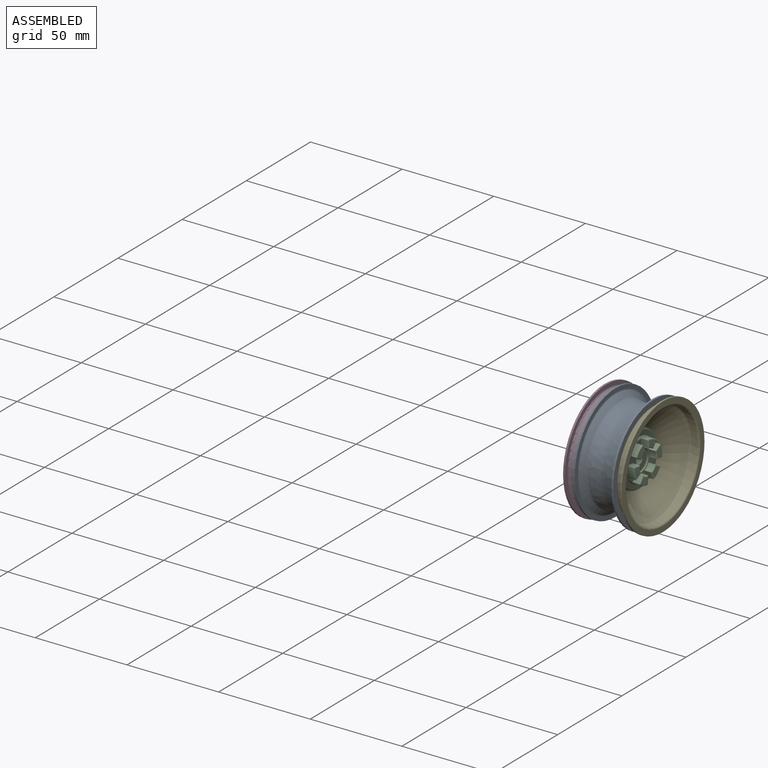
[diagram: assembled view]
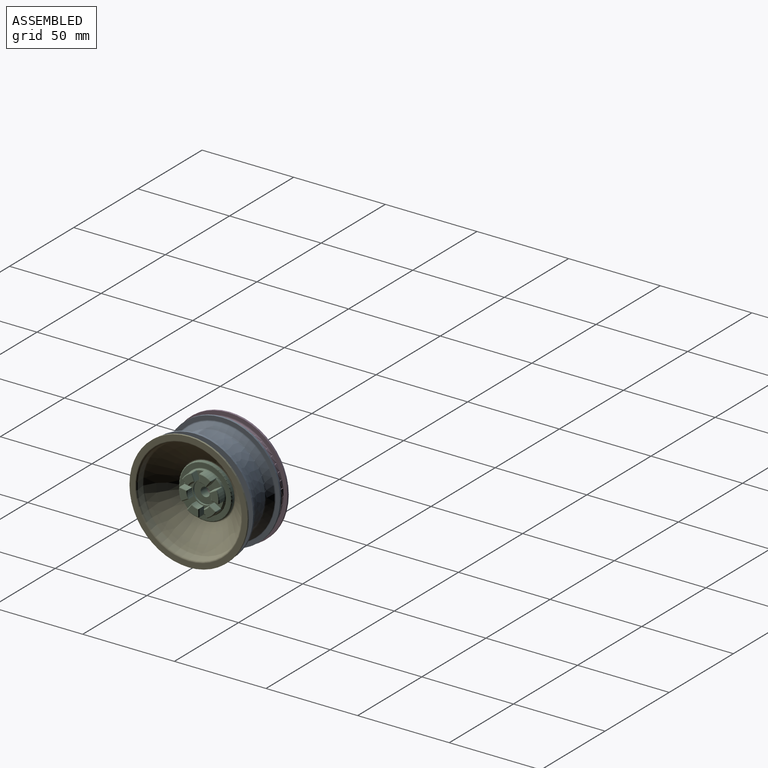
[diagram: assembled view, second angle]
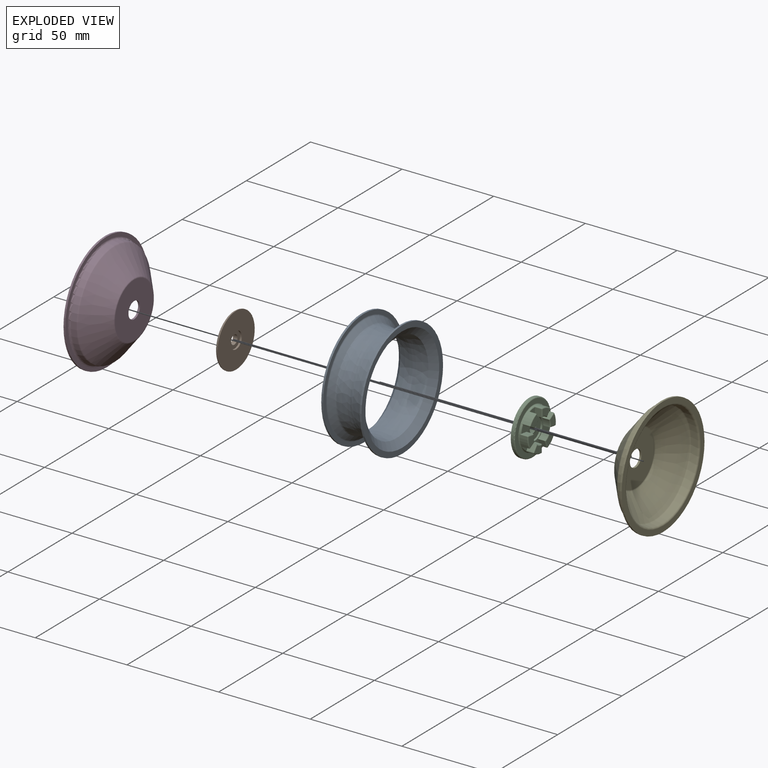
[diagram: exploded view]
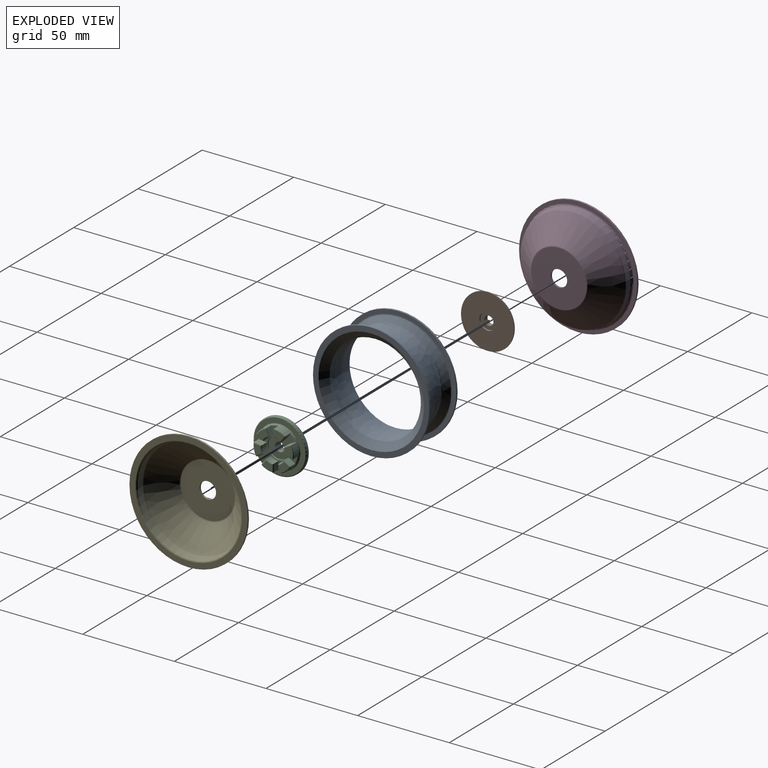
[diagram: exploded view, second angle]
ASSEMBLY  parts=5 mates=4
PART A: 26 faces, bbox 22x65.3x65.3 mm
  f0: cylinder r=24.93mm len=49.85mm, axis (-1,0,0), area 71.9mm2, adj f16,f19
  f1: cone r=25.82mm half-angle=8deg, axis (-1,0,0), area 852.6mm2, adj f16,f20
  f2: cone r=29.11mm half-angle=50.6deg, axis (-1,0,0), area 605mm2, adj f20,f21
  f3: plane 63.5x63.5mm, normal (1,0,0), area 439.2mm2, adj f4,f21
  f4: cylinder r=31.75mm len=63.5mm, axis (-1,0,0), area 199.5mm2, adj f3,f5
  f5: plane 63.5x63.5mm, normal (-1,0,0), area 505.1mm2, adj f4,f22
  f6: cone r=24.89mm half-angle=50.6deg, axis (-1,0,0), area 716.8mm2, adj f22,f23
  f7: cone r=23.92mm half-angle=8deg, axis (-1,0,0), area 890.7mm2, adj f17,f23
  f8: cylinder r=23.92mm len=47.85mm, axis (-1,0,0), area 90.1mm2, adj f17,f18
  f9: cone r=23.92mm half-angle=8deg, axis (1,0,0), area 951.5mm2, adj f10,f18
  f10: cone r=24.89mm half-angle=50.6deg, axis (1,0,0), area 842.5mm2, adj f9,f11
  f11: plane 63.5x63.5mm, normal (1,0,0), area 570.2mm2, adj f10,f12
  f12: cylinder r=31.75mm len=63.5mm, axis (-1,0,0), area 199.5mm2, adj f11,f13
  f13: plane 63.5x63.5mm, normal (-1,0,0), area 439.2mm2, adj f12,f24
  f14: cone r=29.11mm half-angle=50.6deg, axis (1,0,0), area 605mm2, adj f24,f25
  f15: cone r=25.82mm half-angle=8deg, axis (1,0,0), area 852.6mm2, adj f19,f25
  f16: torus R=34.92mm, axis (-1,0,0), area 219.3mm2, adj f0,f1
  f17: torus R=33.92mm, axis (1,0,0), area 210.5mm2, adj f7,f8
  f18: torus R=33.92mm, axis (1,0,0), area 210.5mm2, adj f8,f9
  f19: torus R=34.92mm, axis (-1,0,0), area 219.3mm2, adj f0,f15
  f20: torus R=26.76mm, axis (-1,0,0), area 121mm2, adj f1,f2
  f21: torus R=29.47mm, axis (1,0,0), area 125.9mm2, adj f2,f3
  f22: torus R=29.11mm, axis (-1,0,0), area 124.3mm2, adj f5,f6
  f23: torus R=25.82mm, axis (1,0,0), area 116.6mm2, adj f6,f7
  f24: torus R=29.47mm, axis (1,0,0), area 125.9mm2, adj f13,f14
  f25: torus R=26.76mm, axis (-1,0,0), area 121mm2, adj f14,f15
PART B: 9 faces, bbox 4x31.4x31.4 mm
  f0: plane 10.73x10.73mm, normal (-1,0,0), area 70.7mm2, adj f1,f8
  f1: cylinder r=2.5mm len=5mm, axis (-1,0,0), area 39.3mm2, adj f0,f2
  f2: plane 9x9mm, normal (1,0,0), area 44mm2, adj f1,f3
  f3: cylinder r=4.5mm len=9mm, axis (-1,0,0), area 28.3mm2, adj f2,f4
  f4: plane 29x29mm, normal (1,0,0), area 596.9mm2, adj f3,f5
  f5: cylinder r=14.5mm len=29mm, axis (-1,0,0), area 21.9mm2, adj f4,f7
  f6: cone r=14.5mm half-angle=74.5deg, axis (1,0,0), area 514.6mm2, adj f7,f8
  f7: torus R=13.5mm, axis (1,0,0), area 116.3mm2, adj f5,f6
  f8: torus R=5.36mm, axis (1,0,0), area 9.4mm2, adj f0,f6
PART C: 95 faces, bbox 9.5x31.4x31.4 mm
  f0: cylinder r=11mm len=4.65mm, axis (-1,0,0), area 25mm2, adj f48,f74,f75,f91
  f1: cylinder r=11mm len=6.05mm, axis (-1,0,0), area 25mm2, adj f51,f76,f77,f91
  f2: cylinder r=11mm len=5.83mm, axis (-1,0,0), area 25mm2, adj f54,f78,f79,f91
  f3: cylinder r=11mm len=4.65mm, axis (-1,0,0), area 25mm2, adj f80,f81,f91,f92
  f4: cylinder r=11mm len=6.05mm, axis (-1,0,0), area 25mm2, adj f70,f71,f90,f91
  f5: cylinder r=4.5mm len=9mm, axis (-1,0,0), area 70.7mm2, adj f6,f14
  f6: plane 9x9mm, normal (-1,0,0), area 44mm2, adj f5,f7
  f7: cylinder r=2.5mm len=5mm, axis (-1,0,0), area 70.7mm2, adj f6,f8
  f8: plane 12x12mm, normal (1,0,0), area 93.5mm2, adj f7,f9
  f9: cylinder r=6mm len=12mm, axis (-1,0,0), area 37.7mm2, adj f8,f10
  f10: plane 21x20.8mm, normal (1,0,0), area 98mm2, adj f9,f15,f16,f17,f19,f20,f21,f23
  f11: cylinder r=11mm len=5.83mm, axis (-1,0,0), area 25mm2, adj f45,f72,f73,f91
  f12: plane 28x28mm, normal (1,0,0), area 200.3mm2, adj f91,f94
  f13: cylinder r=14.5mm len=29mm, axis (-1,0,0), area 136.7mm2, adj f14,f94
  f14: plane 29x29mm, normal (-1,0,0), area 596.9mm2, adj f5,f13
  f15: cylinder r=6.5mm len=4mm, axis (-1,0,0), area 15.1mm2, adj f10,f16,f17,f39
  f16: plane 3.5x3.14mm, normal (0,0.79,-0.62), area 14mm2, adj f10,f15,f44,f72
  f17: plane 3.99x3.5mm, normal (0,-1,0), area 14mm2, adj f10,f15,f46,f73
  f18: plane 5.56x4.68mm, normal (1,0,0), area 16.8mm2, adj f39,f44,f45,f46
  f19: plane 3.5x3.45mm, normal (0,-0.5,-0.87), area 14mm2, adj f10,f20,f49,f75
  f20: cylinder r=6.5mm len=3.5mm, axis (-1,0,0), area 15.1mm2, adj f10,f19,f21,f40
  f21: plane 3.7x3.5mm, normal (0,0.93,0.37), area 14mm2, adj f10,f20,f47,f74
  f22: plane 5.75x5.61mm, normal (1,0,0), area 16.8mm2, adj f40,f47,f48,f49
  f23: plane 3.5x3.45mm, normal (0,0.5,-0.87), area 14mm2, adj f10,f24,f52,f77
  f24: cylinder r=6.5mm len=4.15mm, axis (-1,0,0), area 15.1mm2, adj f10,f23,f25,f41
  f25: plane 3.95x3.5mm, normal (0,0.14,0.99), area 14mm2, adj f10,f24,f50,f76
  f26: plane 5.78x4.2mm, normal (1,0,0), area 16.8mm2, adj f41,f50,f51,f52
  f27: plane 3.99x3.5mm, normal (0,1,0), area 14mm2, adj f10,f28,f55,f79
  f28: cylinder r=6.5mm len=4mm, axis (-1,0,0), area 15.1mm2, adj f10,f27,f29,f42
  f29: plane 3.5x3.14mm, normal (0,-0.79,0.62), area 14mm2, adj f10,f28,f53,f78
  f30: plane 5.56x4.68mm, normal (1,0,0), area 16.8mm2, adj f42,f53,f54,f55
  f31: plane 3.5x3.45mm, normal (0,0.5,0.87), area 14mm2, adj f10,f32,f82,f92
  f32: cylinder r=6.5mm len=3.5mm, axis (-1,0,0), area 15.1mm2, adj f10,f31,f33,f68
  f33: plane 3.7x3.5mm, normal (0,-0.93,-0.37), area 14mm2, adj f10,f32,f56,f80
  f34: plane 5.75x5.61mm, normal (1,0,0), area 16.8mm2, adj f56,f68,f81,f82
  f35: plane 3.5x3.45mm, normal (0,-0.5,0.87), area 14mm2, adj f10,f36,f43,f71
  f36: cylinder r=6.5mm len=4.15mm, axis (-1,0,0), area 15.1mm2, adj f10,f35,f37,f57
  f37: plane 3.95x3.5mm, normal (0,-0.14,-0.99), area 14mm2, adj f10,f36,f69,f90
  f38: plane 5.78x4.2mm, normal (1,0,0), area 16.8mm2, adj f43,f57,f69,f70
  f39: torus R=7mm, axis (1,0,0), area 3.2mm2, adj f15,f18,f44,f46
  f40: torus R=7mm, axis (1,0,0), area 3.2mm2, adj f20,f22,f47,f49
  f41: torus R=7mm, axis (1,0,0), area 3.2mm2, adj f24,f26,f50,f52
  f42: torus R=7mm, axis (1,0,0), area 3.2mm2, adj f28,f30,f53,f55
  f43: cylinder r=0.5mm len=3.7mm, axis (0,0.87,0.5), area 3mm2, adj f35,f38,f57,f58
  f44: cylinder r=0.5mm len=3.45mm, axis (0,-0.62,-0.79), area 3mm2, adj f16,f18,f39,f59
  f45: torus R=10.5mm, axis (1,0,0), area 4.8mm2, adj f11,f18,f59,f60
  f46: cylinder r=0.5mm len=3.99mm, axis (0,0,1), area 3mm2, adj f17,f18,f39,f60
  f47: cylinder r=0.5mm len=3.89mm, axis (0,0.37,-0.93), area 3mm2, adj f21,f22,f40,f61
  f48: torus R=10.5mm, axis (1,0,0), area 4.8mm2, adj f0,f22,f61,f62
  f49: cylinder r=0.5mm len=3.7mm, axis (0,-0.87,0.5), area 3mm2, adj f19,f22,f40,f62
  f50: cylinder r=0.5mm len=4.02mm, axis (0,0.99,-0.14), area 3mm2, adj f25,f26,f41,f63
  f51: torus R=10.5mm, axis (1,0,0), area 4.8mm2, adj f1,f26,f63,f64
  f52: cylinder r=0.5mm len=3.7mm, axis (0,-0.87,-0.5), area 3mm2, adj f23,f26,f41,f64
  f53: cylinder r=0.5mm len=3.45mm, axis (0,0.62,0.79), area 3mm2, adj f29,f30,f42,f65
  f54: torus R=10.5mm, axis (1,0,0), area 4.8mm2, adj f2,f30,f65,f66
  f55: cylinder r=0.5mm len=3.99mm, axis (0,0,-1), area 3mm2, adj f27,f30,f42,f66
  f56: cylinder r=0.5mm len=3.89mm, axis (0,-0.37,0.93), area 3mm2, adj f33,f34,f67,f68
  f57: torus R=7mm, axis (1,0,0), area 3.2mm2, adj f36,f38,f43,f69
  f58: sphere r=0.5mm, area 0.4mm2, adj f43,f70,f71
  f59: sphere r=0.5mm, area 0.4mm2, adj f44,f45,f72
  f60: sphere r=0.5mm, area 0.4mm2, adj f45,f46,f73
  f61: sphere r=0.5mm, area 0.4mm2, adj f47,f48,f74
  f62: sphere r=0.5mm, area 0.4mm2, adj f48,f49,f75
  f63: sphere r=0.5mm, area 0.4mm2, adj f50,f51,f76
  f64: sphere r=0.5mm, area 0.4mm2, adj f51,f52,f77
  f65: sphere r=0.5mm, area 0.4mm2, adj f53,f54,f78
  f66: sphere r=0.5mm, area 0.4mm2, adj f54,f55,f79
  f67: sphere r=0.5mm, area 0.4mm2, adj f56,f80,f81
  f68: torus R=7mm, axis (1,0,0), area 3.2mm2, adj f32,f34,f56,f82
  f69: cylinder r=0.5mm len=4.02mm, axis (0,-0.99,0.14), area 3mm2, adj f37,f38,f57,f83
  f70: torus R=10.5mm, axis (1,0,0), area 4.8mm2, adj f4,f38,f58,f83
  f71: cylinder r=0.5mm len=4mm, axis (-1,0,0), area 3mm2, adj f4,f10,f35,f58,f84
  f72: cylinder r=0.5mm len=4mm, axis (-1,0,0), area 3mm2, adj f10,f11,f16,f59,f84
  f73: cylinder r=0.5mm len=4mm, axis (-1,0,0), area 3mm2, adj f10,f11,f17,f60,f85
  f74: cylinder r=0.5mm len=4mm, axis (-1,0,0), area 3mm2, adj f0,f10,f21,f61,f85
  f75: cylinder r=0.5mm len=4mm, axis (-1,0,0), area 3mm2, adj f0,f10,f19,f62,f86
  f76: cylinder r=0.5mm len=4mm, axis (-1,0,0), area 3mm2, adj f1,f10,f25,f63,f86
  f77: cylinder r=0.5mm len=4mm, axis (-1,0,0), area 3mm2, adj f1,f10,f23,f64,f87
  f78: cylinder r=0.5mm len=4mm, axis (-1,0,0), area 3mm2, adj f2,f10,f29,f65,f87
  f79: cylinder r=0.5mm len=4mm, axis (-1,0,0), area 3mm2, adj f2,f10,f27,f66,f88
  f80: cylinder r=0.5mm len=4mm, axis (-1,0,0), area 3mm2, adj f3,f10,f33,f67,f88
  f81: torus R=10.5mm, axis (1,0,0), area 4.8mm2, adj f3,f34,f67,f89
  f82: cylinder r=0.5mm len=3.7mm, axis (0,0.87,-0.5), area 3mm2, adj f31,f34,f68,f89
  f83: sphere r=0.5mm, area 0.4mm2, adj f69,f70,f90
  f84: torus R=10.5mm, axis (-1,0,0), area 3.6mm2, adj f10,f71,f72,f91
  f85: torus R=10.5mm, axis (-1,0,0), area 3.6mm2, adj f10,f73,f74,f91
  f86: torus R=10.5mm, axis (-1,0,0), area 3.6mm2, adj f10,f75,f76,f91
  f87: torus R=10.5mm, axis (-1,0,0), area 3.6mm2, adj f10,f77,f78,f91
  f88: torus R=10.5mm, axis (-1,0,0), area 3.6mm2, adj f10,f79,f80,f91
  f89: sphere r=0.5mm, area 0.4mm2, adj f81,f82,f92
  f90: cylinder r=0.5mm len=4mm, axis (-1,0,0), area 3mm2, adj f4,f10,f37,f83,f93
  f91: torus R=11.5mm, axis (-1,0,0), area 55.2mm2, adj f0,f1,f2,f3,f4,f11,f12,f84
  f92: cylinder r=0.5mm len=4mm, axis (-1,0,0), area 3mm2, adj f3,f10,f31,f89,f93
  f93: torus R=10.5mm, axis (-1,0,0), area 3.6mm2, adj f10,f90,f91,f92
  f94: torus R=14mm, axis (-1,0,0), area 70.7mm2, adj f12,f13
PART D: 16 faces, bbox 16x65.2x65.2 mm
  f0: cone r=29.25mm half-angle=7.1deg, axis (1,0,0), area 500.5mm2, adj f9,f14
  f1: cone r=28.75mm half-angle=50.6deg, axis (1,0,0), area 2295mm2, adj f9,f10
  f2: plane 30x30mm, normal (-1,0,0), area 643.2mm2, adj f10,f15
  f3: plane 29.28x29.28mm, normal (1,0,0), area 609.9mm2, adj f11,f15
  f4: cone r=27.81mm half-angle=50.6deg, axis (1,0,0), area 2125.5mm2, adj f11,f12
  f5: cone r=28.37mm half-angle=7.1deg, axis (1,0,0), area 570.1mm2, adj f12,f13
  f6: plane 64.5x64.5mm, normal (1,0,0), area 579.6mm2, adj f7,f13
  f7: cylinder r=32.25mm len=64.5mm, axis (1,0,0), area 202.6mm2, adj f6,f8
  f8: plane 64.5x64.5mm, normal (-1,0,0), area 414.9mm2, adj f7,f14
  f9: torus R=27.81mm, axis (-1,0,0), area 136.7mm2, adj f0,f1
  f10: torus R=15mm, axis (1,0,0), area 66.2mm2, adj f1,f2
  f11: torus R=14.64mm, axis (-1,0,0), area 64.7mm2, adj f3,f4
  f12: torus R=26.86mm, axis (1,0,0), area 132.2mm2, adj f4,f5
  f13: torus R=29.25mm, axis (-1,0,0), area 260.3mm2, adj f5,f6
  f14: torus R=30.13mm, axis (1,0,0), area 268.4mm2, adj f0,f8
  f15: cylinder r=4.5mm len=9mm, axis (1,0,0), area 28.3mm2, adj f2,f3
PART E: same geometry as D
PLACE A t=(1.49,0,0)mm
PLACE B t=(-2.5,0,0)mm
PLACE C at identity fixed
PLACE D rot(axis=(0,1,0),180deg) t=(1.5,0,0)mm
PLACE E t=(1.5,0,0)mm
MATE fastened E.f15 <-> C.f0  axis (1,0,0) through (2.5,0,0)mm
MATE fastened D.f15 <-> E.f15  axis (1,0,0) through (1.5,0,0)mm
MATE fastened A.f0 <-> E.f0  axis (1,0,0) through (10.91,0,0)mm
MATE fastened B.f1 <-> C.f0  axis (1,0,0) through (0,0,0)mm
